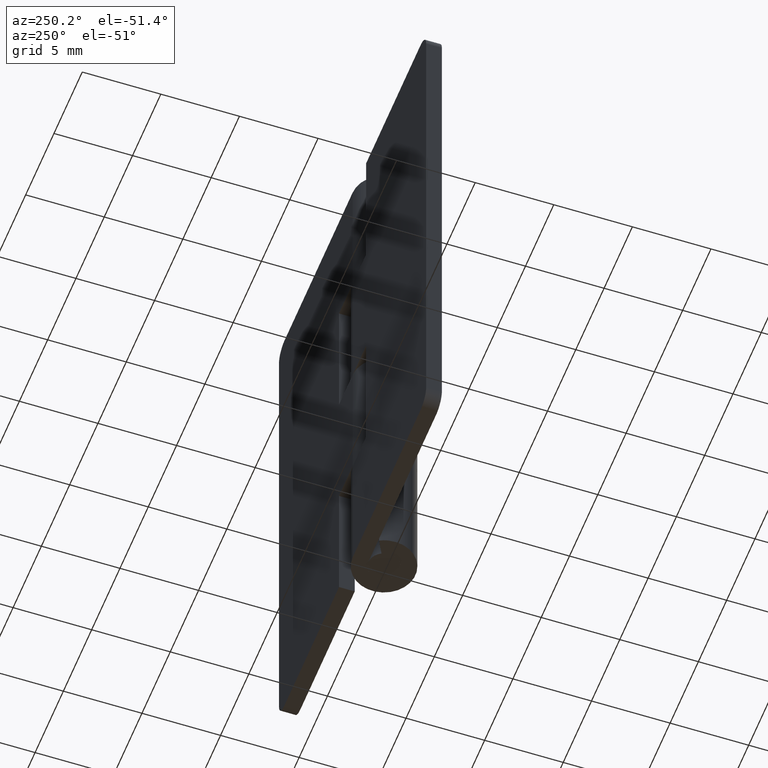
[diagram: clean part render]
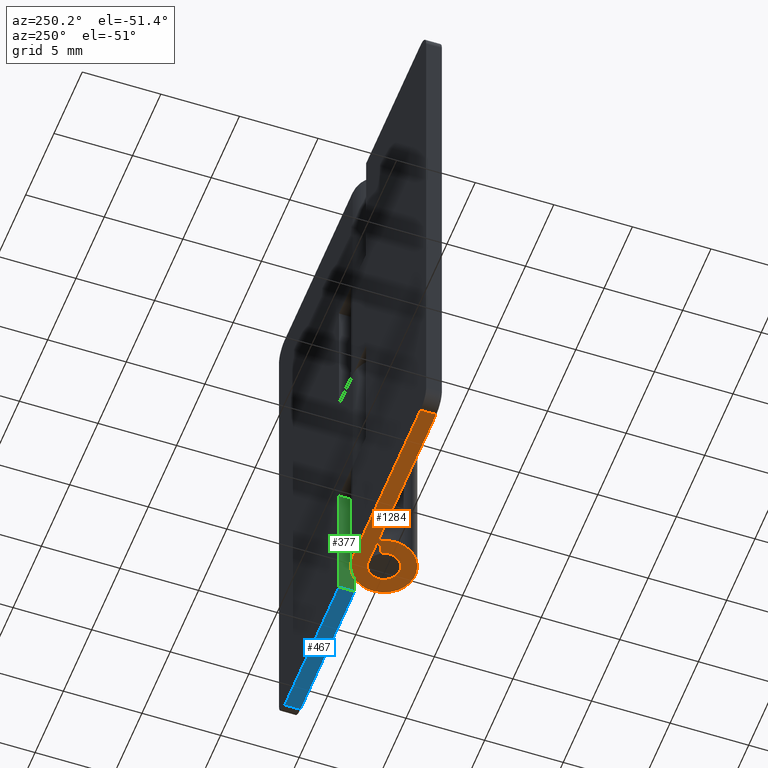
[diagram: same view with three faces highlighted in distinct colors, each labeled with its STEP entity id]
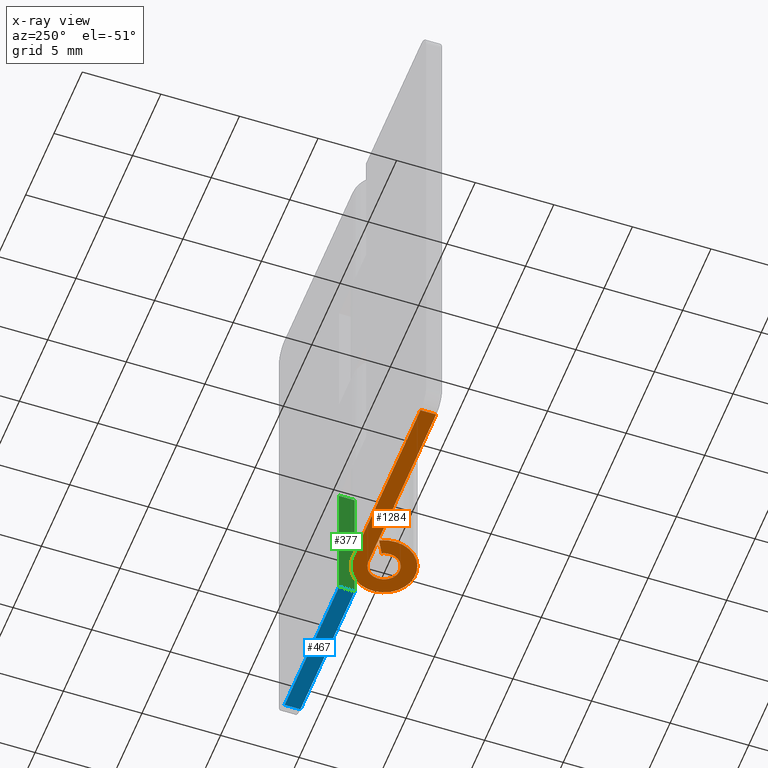
[diagram: x-ray of the same camera — body ghosted, the three highlighted faces saturated]
A machine part, auxiliary view with three faces highlighted in distinct colors.
The next image is the same camera in x-ray (body ghosted, the three faces saturated) — at least one of them is partly hidden behind the body in this view.
Their STEP definitions:

[orange] entity #1284 — the highlighted face is a freeform B-spline surface patch.
#888=CARTESIAN_POINT('',(-12.0,1.0,0.0));
#889=VERTEX_POINT('',#888);
#910=CARTESIAN_POINT('',(-12.0,2.0,0.0));
#911=VERTEX_POINT('',#910);
#925=CARTESIAN_POINT('',(-12.0,1.0,0.0));
#926=CARTESIAN_POINT('',(-12.0,2.0,0.0));
#927=QUASI_UNIFORM_CURVE('',1,(#925,#926),.UNSPECIFIED.,.F.,.U.);
#928=EDGE_CURVE('',#889,#911,#927,.T.);
#1215=CARTESIAN_POINT('',(-12.699296284433800,-2.199490091043403,0.0));
#1216=CARTESIAN_POINT('',(2.699222817466006,-2.199490091043403,0.0));
#1217=CARTESIAN_POINT('',(-12.699296284433800,2.199785356383173,0.0));
#1218=CARTESIAN_POINT('',(2.699222817466006,2.199785356383173,0.0));
#1219=B_SPLINE_SURFACE_WITH_KNOTS('',1,1,((#1215,#1217),(#1216,#1218)),.UNSPECIFIED.,.F.,.F.,.U.,(2,2),(2,2),(0.0,15.398519101899801),(0.0,4.399275447426577),.UNSPECIFIED.);
#1220=CARTESIAN_POINT('',(6.123032E-017,1.0,0.0));
#1221=VERTEX_POINT('',#1220);
#1222=CARTESIAN_POINT('',(6.123032E-017,1.0,0.0));
#1223=CARTESIAN_POINT('',(-12.0,1.0,0.0));
#1224=QUASI_UNIFORM_CURVE('',1,(#1222,#1223),.UNSPECIFIED.,.F.,.U.);
#1225=EDGE_CURVE('',#1221,#889,#1224,.T.);
#1226=ORIENTED_EDGE('',*,*,#1225,.T.);
#1227=ORIENTED_EDGE('',*,*,#928,.T.);
#1228=CARTESIAN_POINT('',(-3.673819E-016,2.0,0.0));
#1229=VERTEX_POINT('',#1228);
#1230=CARTESIAN_POINT('',(-12.0,2.0,0.0));
#1231=CARTESIAN_POINT('',(-3.673819E-016,2.0,0.0));
#1232=QUASI_UNIFORM_CURVE('',1,(#1230,#1231),.UNSPECIFIED.,.F.,.U.);
#1233=EDGE_CURVE('',#911,#1229,#1232,.T.);
#1234=ORIENTED_EDGE('',*,*,#1233,.T.);
#1235=CARTESIAN_POINT('',(-1.759971590679805,0.950000000000000,0.0));
#1236=VERTEX_POINT('',#1235);
#1237=CARTESIAN_POINT('',(0.0,2.0,0.0));
#1238=CARTESIAN_POINT('',(1.523311426391113,2.000000000000000,0.0));
#1239=CARTESIAN_POINT('',(1.928096575312494,0.531454227820452,0.0));
#1240=CARTESIAN_POINT('',(2.332881724233873,-0.937091544359094,0.0));
#1241=CARTESIAN_POINT('',(1.024695076595961,-1.717556403731766,0.0));
#1242=CARTESIAN_POINT('',(-0.283491571041951,-2.498021263104438,0.0));
#1243=CARTESIAN_POINT('',(-1.383518044628767,-1.444256840103794,0.0));
#1244=CARTESIAN_POINT('',(-2.483544518215582,-0.390492417103149,0.0));
#1245=CARTESIAN_POINT('',(-1.759971590679806,0.949999999999997,0.0));
#1253=(BOUNDED_CURVE()B_SPLINE_CURVE(2,(#1237,#1238,#1239,#1240,#1241,#1242,#1243,#1244,#1245),.UNSPECIFIED.,.F.,.U.)B_SPLINE_CURVE_WITH_KNOTS((3,2,2,2,3),(0.0,0.250000000000000,0.500000000000000,0.750000000000000,1.0),.UNSPECIFIED.)CURVE()GEOMETRIC_REPRESENTATION_ITEM()RATIONAL_B_SPLINE_CURVE((1.0,0.795527219493534,1.0,0.795527219493534,1.0,0.795527219493534,1.0,0.795527219493534,1.0))REPRESENTATION_ITEM(''));
#1254=EDGE_CURVE('',#1229,#1236,#1253,.T.);
#1255=ORIENTED_EDGE('',*,*,#1254,.T.);
#1256=CARTESIAN_POINT('',(-0.879985795339902,0.475000000000000,0.0));
#1257=VERTEX_POINT('',#1256);
#1258=CARTESIAN_POINT('',(-1.759971590679805,0.950000000000000,0.0));
#1259=CARTESIAN_POINT('',(-0.879985795339902,0.475000000000000,0.0));
#1260=QUASI_UNIFORM_CURVE('',1,(#1258,#1259),.UNSPECIFIED.,.F.,.U.);
#1261=EDGE_CURVE('',#1236,#1257,#1260,.T.);
#1262=ORIENTED_EDGE('',*,*,#1261,.T.);
#1263=CARTESIAN_POINT('',(0.0,1.0,0.0));
#1264=CARTESIAN_POINT('',(0.761655713195556,1.0,0.0));
#1265=CARTESIAN_POINT('',(0.964048287656247,0.265727113910226,0.0));
#1266=CARTESIAN_POINT('',(1.166440862116937,-0.468545772179547,0.0));
#1267=CARTESIAN_POINT('',(0.512347538297981,-0.858778201865883,0.0));
#1268=CARTESIAN_POINT('',(-0.141745785520976,-1.249010631552219,0.0));
#1269=CARTESIAN_POINT('',(-0.691759022314383,-0.722128420051897,0.0));
#1270=CARTESIAN_POINT('',(-1.241772259107791,-0.195246208551574,0.0));
#1271=CARTESIAN_POINT('',(-0.879985795339903,0.474999999999999,0.0));
#1279=(BOUNDED_CURVE()B_SPLINE_CURVE(2,(#1263,#1264,#1265,#1266,#1267,#1268,#1269,#1270,#1271),.UNSPECIFIED.,.F.,.U.)B_SPLINE_CURVE_WITH_KNOTS((3,2,2,2,3),(0.0,0.250000000000000,0.500000000000000,0.750000000000000,1.0),.UNSPECIFIED.)CURVE()GEOMETRIC_REPRESENTATION_ITEM()RATIONAL_B_SPLINE_CURVE((1.0,0.795527219493534,1.0,0.795527219493534,1.0,0.795527219493534,1.0,0.795527219493534,1.0))REPRESENTATION_ITEM(''));
#1280=EDGE_CURVE('',#1221,#1257,#1279,.T.);
#1281=ORIENTED_EDGE('',*,*,#1280,.F.);
#1282=EDGE_LOOP('',(#1226,#1227,#1234,#1255,#1262,#1281));
#1283=FACE_OUTER_BOUND('',#1282,.T.);
#1284=ADVANCED_FACE('',(#1283),#1219,.F.);

[blue] entity #467 — the highlighted face is a freeform B-spline surface patch.
#121=CARTESIAN_POINT('',(12.0,2.0,0.0));
#122=VERTEX_POINT('',#121);
#143=CARTESIAN_POINT('',(12.0,1.0,0.0));
#144=VERTEX_POINT('',#143);
#158=CARTESIAN_POINT('',(12.0,2.0,0.0));
#159=CARTESIAN_POINT('',(12.0,1.0,0.0));
#160=QUASI_UNIFORM_CURVE('',1,(#158,#159),.UNSPECIFIED.,.F.,.U.);
#161=EDGE_CURVE('',#122,#144,#160,.T.);
#347=CARTESIAN_POINT('',(2.400001999999900,1.0,0.0));
#348=VERTEX_POINT('',#347);
#363=CARTESIAN_POINT('',(2.400001999999900,2.0,0.0));
#364=VERTEX_POINT('',#363);
#370=CARTESIAN_POINT('',(2.400001999999900,1.0,0.0));
#371=CARTESIAN_POINT('',(2.400001999999900,2.0,0.0));
#372=QUASI_UNIFORM_CURVE('',1,(#370,#371),.UNSPECIFIED.,.F.,.U.);
#373=EDGE_CURVE('',#348,#364,#372,.T.);
#448=CARTESIAN_POINT('',(1.920482118506554,2.049949998061806,0.0));
#449=CARTESIAN_POINT('',(12.479520138985359,2.049949998061806,0.0));
#450=CARTESIAN_POINT('',(1.920482118506554,0.950049975116104,0.0));
#451=CARTESIAN_POINT('',(12.479520138985359,0.950049975116104,0.0));
#452=B_SPLINE_SURFACE_WITH_KNOTS('',1,1,((#448,#450),(#449,#451)),.UNSPECIFIED.,.F.,.F.,.U.,(2,2),(2,2),(0.0,10.559038020478811),(0.041708334948495,0.958291687403247),.UNSPECIFIED.);
#453=CARTESIAN_POINT('',(2.400001999999900,2.0,0.0));
#454=CARTESIAN_POINT('',(12.0,2.0,0.0));
#455=QUASI_UNIFORM_CURVE('',1,(#453,#454),.UNSPECIFIED.,.F.,.U.);
#456=EDGE_CURVE('',#364,#122,#455,.T.);
#457=ORIENTED_EDGE('',*,*,#456,.T.);
#458=ORIENTED_EDGE('',*,*,#161,.T.);
#459=CARTESIAN_POINT('',(12.0,1.0,0.0));
#460=CARTESIAN_POINT('',(2.400001999999900,1.0,0.0));
#461=QUASI_UNIFORM_CURVE('',1,(#459,#460),.UNSPECIFIED.,.F.,.U.);
#462=EDGE_CURVE('',#144,#348,#461,.T.);
#463=ORIENTED_EDGE('',*,*,#462,.T.);
#464=ORIENTED_EDGE('',*,*,#373,.T.);
#465=EDGE_LOOP('',(#457,#458,#463,#464));
#466=FACE_OUTER_BOUND('',#465,.T.);
#467=ADVANCED_FACE('',(#466),#452,.T.);

[green] entity #377 — the highlighted face is a freeform B-spline surface patch.
#342=CARTESIAN_POINT('',(2.400001999999900,0.950050001938194,9.187062483040801));
#343=CARTESIAN_POINT('',(2.400001999999900,0.950050001938194,-0.437062717734091));
#344=CARTESIAN_POINT('',(2.400001999999900,2.049950024883896,9.187062483040801));
#345=CARTESIAN_POINT('',(2.400001999999900,2.049950024883896,-0.437062717734091));
#346=B_SPLINE_SURFACE_WITH_KNOTS('',1,1,((#342,#344),(#343,#345)),.UNSPECIFIED.,.F.,.F.,.U.,(2,2),(2,2),(0.0,9.624125200774893),(0.041708334948495,0.958291687403247),.UNSPECIFIED.);
#347=CARTESIAN_POINT('',(2.400001999999900,1.0,0.0));
#348=VERTEX_POINT('',#347);
#349=CARTESIAN_POINT('',(2.400001999999900,1.0,8.750000000000000));
#350=VERTEX_POINT('',#349);
#351=CARTESIAN_POINT('',(2.400001999999900,1.0,0.0));
#352=CARTESIAN_POINT('',(2.400001999999900,1.0,8.750000000000000));
#353=QUASI_UNIFORM_CURVE('',1,(#351,#352),.UNSPECIFIED.,.F.,.U.);
#354=EDGE_CURVE('',#348,#350,#353,.T.);
#355=ORIENTED_EDGE('',*,*,#354,.T.);
#356=CARTESIAN_POINT('',(2.400001999999900,2.0,8.750000000000000));
#357=VERTEX_POINT('',#356);
#358=CARTESIAN_POINT('',(2.400001999999900,1.0,8.750000000000000));
#359=CARTESIAN_POINT('',(2.400001999999900,2.0,8.750000000000000));
#360=QUASI_UNIFORM_CURVE('',1,(#358,#359),.UNSPECIFIED.,.F.,.U.);
#361=EDGE_CURVE('',#350,#357,#360,.T.);
#362=ORIENTED_EDGE('',*,*,#361,.T.);
#363=CARTESIAN_POINT('',(2.400001999999900,2.0,0.0));
#364=VERTEX_POINT('',#363);
#365=CARTESIAN_POINT('',(2.400001999999900,2.0,8.750000000000000));
#366=CARTESIAN_POINT('',(2.400001999999900,2.0,0.0));
#367=QUASI_UNIFORM_CURVE('',1,(#365,#366),.UNSPECIFIED.,.F.,.U.);
#368=EDGE_CURVE('',#357,#364,#367,.T.);
#369=ORIENTED_EDGE('',*,*,#368,.T.);
#370=CARTESIAN_POINT('',(2.400001999999900,1.0,0.0));
#371=CARTESIAN_POINT('',(2.400001999999900,2.0,0.0));
#372=QUASI_UNIFORM_CURVE('',1,(#370,#371),.UNSPECIFIED.,.F.,.U.);
#373=EDGE_CURVE('',#348,#364,#372,.T.);
#374=ORIENTED_EDGE('',*,*,#373,.F.);
#375=EDGE_LOOP('',(#355,#362,#369,#374));
#376=FACE_OUTER_BOUND('',#375,.T.);
#377=ADVANCED_FACE('',(#376),#346,.F.);